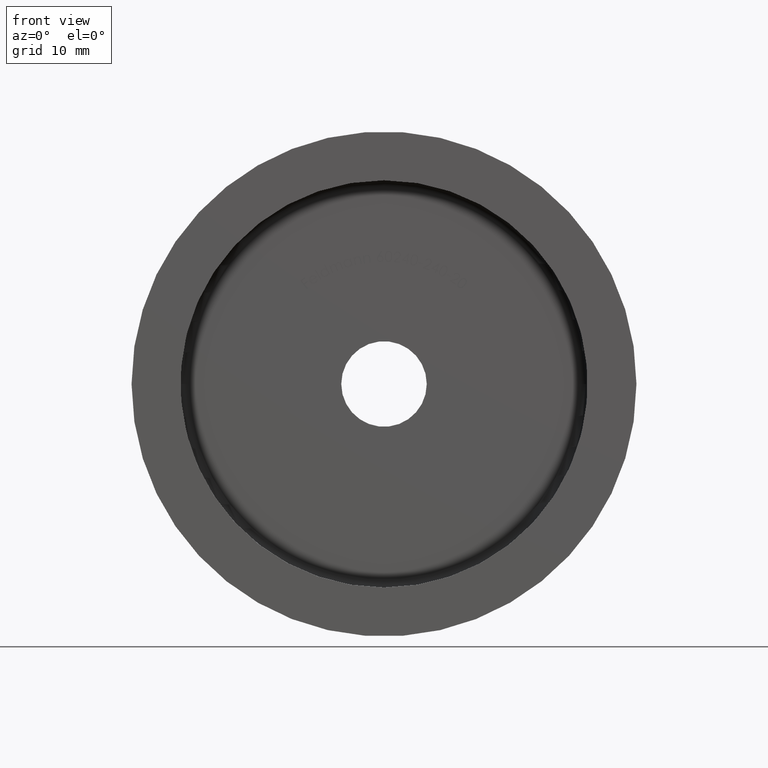
[diagram: clean part render]
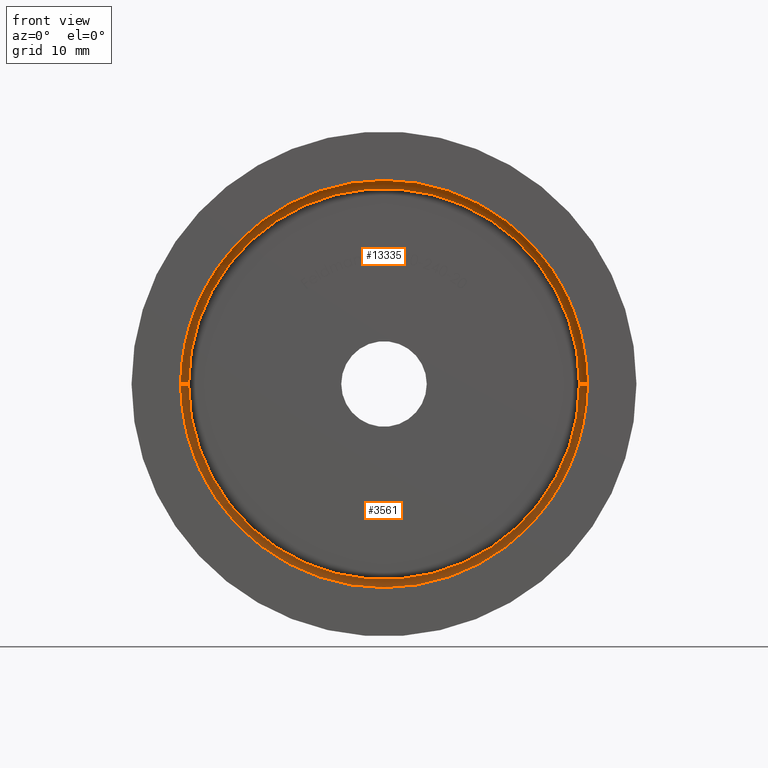
[diagram: same view with one multi-face feature highlighted, each face labeled with its STEP entity id]
A machine part, front view. The highlighted faces form ONE feature: a constant-radius fillet chain: 2 tangent blend faces with common blend radius 1 mm. The faces share edges in the B-rep.
Their STEP definitions:
[1] entity #13335 (Torus):
#288 = EDGE_CURVE ( 'NONE', #2781, #12257, #817, .T. ) ;
#391 = CARTESIAN_POINT ( 'NONE',  ( -24.00000000000000000, 14.99999999999999467, 0.000000000000000000 ) ) ;
#485 = CARTESIAN_POINT ( 'NONE',  ( -24.00000000000000000, 13.99999999999998046, 0.000000000000000000 ) ) ;
#579 = DIRECTION ( 'NONE',  ( -1.000000000000000000, 0.000000000000000000, 0.000000000000000000 ) ) ;
#666 = DIRECTION ( 'NONE',  ( -1.734723475976807341E-16, 1.000000000000000000, -0.000000000000000000 ) ) ;
#817 = CIRCLE ( 'NONE', #14577, 24.00000000000000000 ) ;
#1868 = DIRECTION ( 'NONE',  ( 1.734723475976807341E-16, -1.000000000000000000, 0.000000000000000000 ) ) ;
#1902 = CIRCLE ( 'NONE', #7555, 25.00000000000000000 ) ;
#2421 = TOROIDAL_SURFACE ( 'NONE', #14928, 24.00000000000000000, 1.000000000000000000 ) ;
#2646 = DIRECTION ( 'NONE',  ( 1.000000000000000000, 0.000000000000000000, 1.224646799147353454E-16 ) ) ;
#2764 = DIRECTION ( 'NONE',  ( -1.734723475976807341E-16, 1.000000000000000000, -0.000000000000000000 ) ) ;
#2781 = VERTEX_POINT ( 'NONE', #6745 ) ;
#2918 = DIRECTION ( 'NONE',  ( -1.000000000000000000, -2.081668171172168513E-16, 0.000000000000000000 ) ) ;
#3399 = ORIENTED_EDGE ( 'NONE', *, *, #13076, .F. ) ;
#4219 = ORIENTED_EDGE ( 'NONE', *, *, #7561, .T. ) ;
#4432 = CARTESIAN_POINT ( 'NONE',  ( -25.00000000000000000, 13.99999999999998046, 0.000000000000000000 ) ) ;
#4619 = CIRCLE ( 'NONE', #12078, 1.000000000000000888 ) ;
#4764 = EDGE_CURVE ( 'NONE', #7500, #7933, #7204, .T. ) ;
#4926 = CARTESIAN_POINT ( 'NONE',  ( 24.00000000000000000, 13.99999999999998757, 2.939152317953647894E-15 ) ) ;
#6372 = CARTESIAN_POINT ( 'NONE',  ( -1.734723475976830267E-16, 14.99999999999999822, 0.000000000000000000 ) ) ;
#6628 = CIRCLE ( 'NONE', #14700, 1.000000000000000888 ) ;
#6745 = CARTESIAN_POINT ( 'NONE',  ( 24.00000000000000000, 15.00000000000000178, 3.000384657911015469E-15 ) ) ;
#7204 = CIRCLE ( 'NONE', #11391, 25.00000000000000000 ) ;
#7500 = VERTEX_POINT ( 'NONE', #10230 ) ;
#7555 = AXIS2_PLACEMENT_3D ( 'NONE', #12255, #666, #7579 ) ;
#7561 = EDGE_CURVE ( 'NONE', #7635, #12257, #6628, .T. ) ;
#7579 = DIRECTION ( 'NONE',  ( -1.000000000000000000, -2.081668171172168513E-16, 0.000000000000000000 ) ) ;
#7615 = FACE_OUTER_BOUND ( 'NONE', #13993, .T. ) ;
#7635 = VERTEX_POINT ( 'NONE', #4432 ) ;
#7933 = VERTEX_POINT ( 'NONE', #12170 ) ;
#8503 = CARTESIAN_POINT ( 'NONE',  ( 0.000000000000000000, 13.99999999999998401, 0.000000000000000000 ) ) ;
#8566 = DIRECTION ( 'NONE',  ( -1.000000000000000000, -1.445602896647339163E-16, 0.000000000000000000 ) ) ;
#8681 = DIRECTION ( 'NONE',  ( -1.734723475976807341E-16, 1.000000000000000000, -0.000000000000000000 ) ) ;
#8783 = CARTESIAN_POINT ( 'NONE',  ( 0.000000000000000000, 13.99999999999998401, 0.000000000000000000 ) ) ;
#9390 = EDGE_CURVE ( 'NONE', #7933, #2781, #4619, .T. ) ;
#10230 = CARTESIAN_POINT ( 'NONE',  ( 3.061616997868382254E-15, 13.99999999999998401, 25.00000000000000000 ) ) ;
#10701 = DIRECTION ( 'NONE',  ( 0.000000000000000000, -0.000000000000000000, -1.000000000000000000 ) ) ;
#11391 = AXIS2_PLACEMENT_3D ( 'NONE', #8503, #2764, #2918 ) ;
#12011 = ORIENTED_EDGE ( 'NONE', *, *, #9390, .F. ) ;
#12078 = AXIS2_PLACEMENT_3D ( 'NONE', #4926, #13025, #2646 ) ;
#12148 = ORIENTED_EDGE ( 'NONE', *, *, #4764, .F. ) ;
#12170 = CARTESIAN_POINT ( 'NONE',  ( 25.00000000000000000, 13.99999999999998757, 3.061616997868383043E-15 ) ) ;
#12255 = CARTESIAN_POINT ( 'NONE',  ( 0.000000000000000000, 13.99999999999998401, 0.000000000000000000 ) ) ;
#12257 = VERTEX_POINT ( 'NONE', #391 ) ;
#12503 = ORIENTED_EDGE ( 'NONE', *, *, #288, .F. ) ;
#13025 = DIRECTION ( 'NONE',  ( -1.224646799147353207E-16, -2.124423552260767565E-32, 1.000000000000000000 ) ) ;
#13076 = EDGE_CURVE ( 'NONE', #7635, #7500, #1902, .T. ) ;
#13335 = ADVANCED_FACE ( 'NONE', ( #7615 ), #2421, .F. ) ;
#13993 = EDGE_LOOP ( 'NONE', ( #12011, #12148, #3399, #4219, #12503 ) ) ;
#14577 = AXIS2_PLACEMENT_3D ( 'NONE', #6372, #1868, #8566 ) ;
#14593 = DIRECTION ( 'NONE',  ( -1.000000000000000000, -1.734723475976807341E-16, 0.000000000000000000 ) ) ;
#14700 = AXIS2_PLACEMENT_3D ( 'NONE', #485, #10701, #579 ) ;
#14928 = AXIS2_PLACEMENT_3D ( 'NONE', #8783, #8681, #14593 ) ;
[2] entity #3561 (Torus):
#391 = CARTESIAN_POINT ( 'NONE',  ( -24.00000000000000000, 14.99999999999999467, 0.000000000000000000 ) ) ;
#485 = CARTESIAN_POINT ( 'NONE',  ( -24.00000000000000000, 13.99999999999998046, 0.000000000000000000 ) ) ;
#579 = DIRECTION ( 'NONE',  ( -1.000000000000000000, 0.000000000000000000, 0.000000000000000000 ) ) ;
#1287 = EDGE_LOOP ( 'NONE', ( #4715, #10565, #3095, #4003, #2939 ) ) ;
#1775 = VERTEX_POINT ( 'NONE', #8202 ) ;
#2646 = DIRECTION ( 'NONE',  ( 1.000000000000000000, 0.000000000000000000, 1.224646799147353454E-16 ) ) ;
#2781 = VERTEX_POINT ( 'NONE', #6745 ) ;
#2802 = CIRCLE ( 'NONE', #5654, 25.00000000000000000 ) ;
#2939 = ORIENTED_EDGE ( 'NONE', *, *, #12701, .F. ) ;
#2998 = CARTESIAN_POINT ( 'NONE',  ( 0.000000000000000000, 13.99999999999998401, 0.000000000000000000 ) ) ;
#3095 = ORIENTED_EDGE ( 'NONE', *, *, #7865, .F. ) ;
#3448 = DIRECTION ( 'NONE',  ( -1.000000000000000000, -1.445602896647339163E-16, 0.000000000000000000 ) ) ;
#3561 = ADVANCED_FACE ( 'NONE', ( #4356 ), #9709, .F. ) ;
#3605 = DIRECTION ( 'NONE',  ( -1.734723475976807341E-16, 1.000000000000000000, -0.000000000000000000 ) ) ;
#3701 = CARTESIAN_POINT ( 'NONE',  ( 0.000000000000000000, 13.99999999999998401, 0.000000000000000000 ) ) ;
#3946 = DIRECTION ( 'NONE',  ( -1.734723475976807341E-16, 1.000000000000000000, -0.000000000000000000 ) ) ;
#4003 = ORIENTED_EDGE ( 'NONE', *, *, #7561, .F. ) ;
#4356 = FACE_OUTER_BOUND ( 'NONE', #1287, .T. ) ;
#4432 = CARTESIAN_POINT ( 'NONE',  ( -25.00000000000000000, 13.99999999999998046, 0.000000000000000000 ) ) ;
#4619 = CIRCLE ( 'NONE', #12078, 1.000000000000000888 ) ;
#4715 = ORIENTED_EDGE ( 'NONE', *, *, #13087, .F. ) ;
#4926 = CARTESIAN_POINT ( 'NONE',  ( 24.00000000000000000, 13.99999999999998757, 2.939152317953647894E-15 ) ) ;
#5067 = DIRECTION ( 'NONE',  ( -1.000000000000000000, -1.734723475976807341E-16, 0.000000000000000000 ) ) ;
#5654 = AXIS2_PLACEMENT_3D ( 'NONE', #3701, #3605, #5991 ) ;
#5839 = CARTESIAN_POINT ( 'NONE',  ( -1.734723475976830267E-16, 14.99999999999999822, 0.000000000000000000 ) ) ;
#5991 = DIRECTION ( 'NONE',  ( -1.000000000000000000, -2.081668171172168513E-16, 0.000000000000000000 ) ) ;
#6034 = AXIS2_PLACEMENT_3D ( 'NONE', #2998, #12166, #7677 ) ;
#6628 = CIRCLE ( 'NONE', #14700, 1.000000000000000888 ) ;
#6745 = CARTESIAN_POINT ( 'NONE',  ( 24.00000000000000000, 15.00000000000000178, 3.000384657911015469E-15 ) ) ;
#7561 = EDGE_CURVE ( 'NONE', #7635, #12257, #6628, .T. ) ;
#7635 = VERTEX_POINT ( 'NONE', #4432 ) ;
#7677 = DIRECTION ( 'NONE',  ( -1.000000000000000000, -2.081668171172168513E-16, 0.000000000000000000 ) ) ;
#7865 = EDGE_CURVE ( 'NONE', #12257, #2781, #11850, .T. ) ;
#7933 = VERTEX_POINT ( 'NONE', #12170 ) ;
#8202 = CARTESIAN_POINT ( 'NONE',  ( -9.027796614315169813E-31, 13.99999999999998401, -25.00000000000000000 ) ) ;
#9390 = EDGE_CURVE ( 'NONE', #7933, #2781, #4619, .T. ) ;
#9709 = TOROIDAL_SURFACE ( 'NONE', #11775, 24.00000000000000000, 1.000000000000000000 ) ;
#10565 = ORIENTED_EDGE ( 'NONE', *, *, #9390, .T. ) ;
#10701 = DIRECTION ( 'NONE',  ( 0.000000000000000000, -0.000000000000000000, -1.000000000000000000 ) ) ;
#10735 = DIRECTION ( 'NONE',  ( 1.734723475976807341E-16, -1.000000000000000000, 0.000000000000000000 ) ) ;
#10786 = CARTESIAN_POINT ( 'NONE',  ( 0.000000000000000000, 13.99999999999998401, 0.000000000000000000 ) ) ;
#11775 = AXIS2_PLACEMENT_3D ( 'NONE', #10786, #3946, #5067 ) ;
#11850 = CIRCLE ( 'NONE', #14219, 24.00000000000000000 ) ;
#12078 = AXIS2_PLACEMENT_3D ( 'NONE', #4926, #13025, #2646 ) ;
#12166 = DIRECTION ( 'NONE',  ( -1.734723475976807341E-16, 1.000000000000000000, -0.000000000000000000 ) ) ;
#12170 = CARTESIAN_POINT ( 'NONE',  ( 25.00000000000000000, 13.99999999999998757, 3.061616997868383043E-15 ) ) ;
#12257 = VERTEX_POINT ( 'NONE', #391 ) ;
#12701 = EDGE_CURVE ( 'NONE', #1775, #7635, #2802, .T. ) ;
#13025 = DIRECTION ( 'NONE',  ( -1.224646799147353207E-16, -2.124423552260767565E-32, 1.000000000000000000 ) ) ;
#13087 = EDGE_CURVE ( 'NONE', #7933, #1775, #13564, .T. ) ;
#13564 = CIRCLE ( 'NONE', #6034, 25.00000000000000000 ) ;
#14219 = AXIS2_PLACEMENT_3D ( 'NONE', #5839, #10735, #3448 ) ;
#14700 = AXIS2_PLACEMENT_3D ( 'NONE', #485, #10701, #579 ) ;